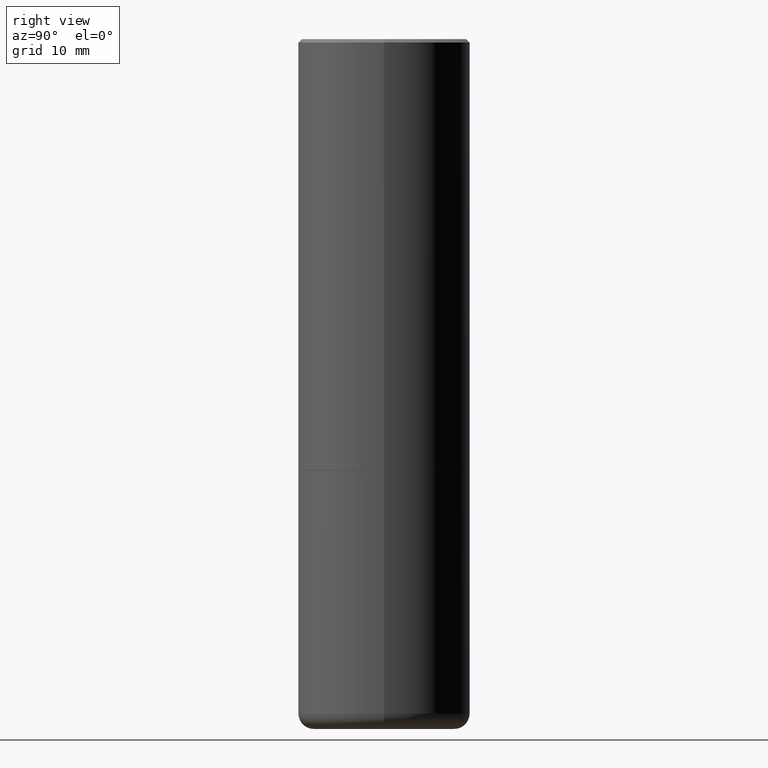
[diagram: clean part render]
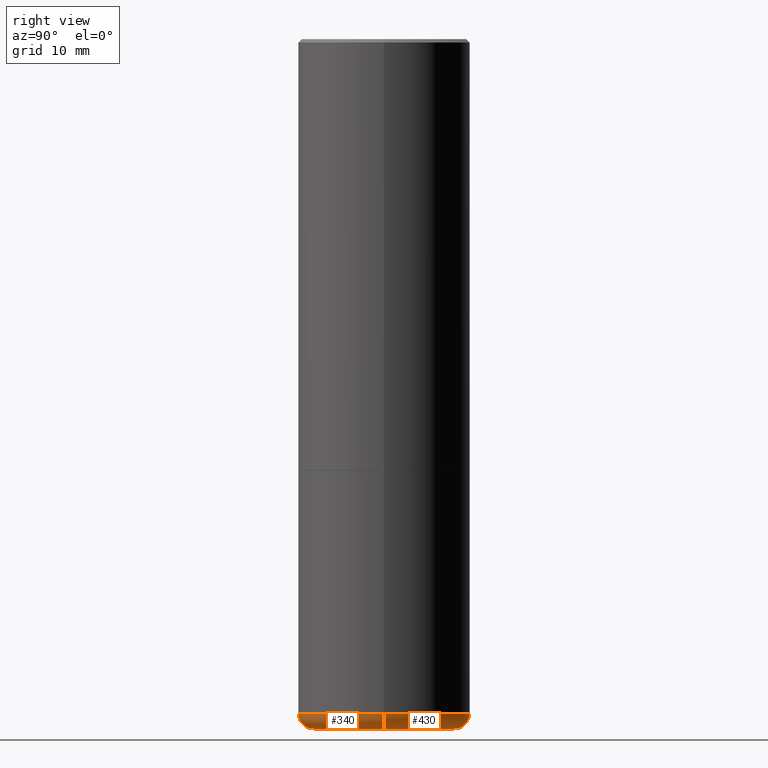
[diagram: same view with one multi-face feature highlighted, each face labeled with its STEP entity id]
A machine part, right view. The highlighted faces form ONE feature: a constant-radius fillet chain: 2 tangent blend faces with common blend radius 2.286 mm. The faces share edges in the B-rep.
Their STEP definitions:
[1] entity #430 (Torus):
#2 = EDGE_LOOP ( 'NONE', ( #293, #30, #399, #130 ) ) ;
#18 = CIRCLE ( 'NONE', #258, 0.08999999999999999667 ) ;
#30 = ORIENTED_EDGE ( 'NONE', *, *, #120, .T. ) ;
#34 = CIRCLE ( 'NONE', #294, 0.4052897639381357053 ) ;
#53 = CARTESIAN_POINT ( 'NONE',  ( 0.4099999999999999756, -1.651513737857276136E-14, -3.910123341872087988 ) ) ;
#85 = DIRECTION ( 'NONE',  ( 1.000000000000000000, -6.982962677686269077E-15, 0.000000000000000000 ) ) ;
#86 = VERTEX_POINT ( 'NONE', #246 ) ;
#96 = VERTEX_POINT ( 'NONE', #178 ) ;
#108 = DIRECTION ( 'NONE',  ( 1.000000000000000000, -6.982962677686266711E-15, 0.000000000000000000 ) ) ;
#120 = EDGE_CURVE ( 'NONE', #387, #416, #18, .T. ) ;
#124 = EDGE_CURVE ( 'NONE', #96, #86, #330, .T. ) ;
#130 = ORIENTED_EDGE ( 'NONE', *, *, #124, .F. ) ;
#137 = FACE_OUTER_BOUND ( 'NONE', #2, .T. ) ;
#150 = DIRECTION ( 'NONE',  ( 1.000000000000000000, -6.982962677686269077E-15, 0.000000000000000000 ) ) ;
#178 = CARTESIAN_POINT ( 'NONE',  ( 0.4052897639381357053, -1.679604865060086105E-14, -3.999999999999999556 ) ) ;
#179 = CARTESIAN_POINT ( 'NONE',  ( 9.781875224740545266E-29, -1.396592535537258075E-14, -3.999999999999999556 ) ) ;
#189 = DIRECTION ( 'NONE',  ( -6.982962677686266711E-15, -1.000000000000000000, 3.491481338843145583E-15 ) ) ;
#199 = EDGE_CURVE ( 'NONE', #96, #387, #34, .T. ) ;
#207 = AXIS2_PLACEMENT_3D ( 'NONE', #407, #216, #220 ) ;
#215 = CARTESIAN_POINT ( 'NONE',  ( -0.4099999999999999756, -1.073889746410498118E-14, -3.910123341872087988 ) ) ;
#216 = DIRECTION ( 'NONE',  ( -2.445468806185136597E-29, 3.491481338843145583E-15, 1.000000000000000000 ) ) ;
#219 = DIRECTION ( 'NONE',  ( 7.105427357601001859E-15, 1.000000000000000000, -3.491481338843145583E-15 ) ) ;
#220 = DIRECTION ( 'NONE',  ( 1.000000000000000000, -6.982962677686266711E-15, 4.883557194083113462E-29 ) ) ;
#246 = CARTESIAN_POINT ( 'NONE',  ( 0.5000000000000000000, -1.714360401956452473E-14, -3.910123341872087988 ) ) ;
#256 = DIRECTION ( 'NONE',  ( -1.000000000000000000, 7.105427357600990815E-15, 0.000000000000000000 ) ) ;
#258 = AXIS2_PLACEMENT_3D ( 'NONE', #215, #219, #256 ) ;
#293 = ORIENTED_EDGE ( 'NONE', *, *, #199, .T. ) ;
#294 = AXIS2_PLACEMENT_3D ( 'NONE', #179, #418, #85 ) ;
#295 = CARTESIAN_POINT ( 'NONE',  ( -0.4052897639381357053, -1.059278869042589352E-14, -3.999999999999999556 ) ) ;
#318 = AXIS2_PLACEMENT_3D ( 'NONE', #53, #189, #150 ) ;
#330 = CIRCLE ( 'NONE', #318, 0.08999999999999999667 ) ;
#347 = DIRECTION ( 'NONE',  ( -2.445468806185136597E-29, 3.491481338843145583E-15, 1.000000000000000000 ) ) ;
#350 = CARTESIAN_POINT ( 'NONE',  ( -0.5000000000000000000, -7.637699335114127230E-15, -3.910123341872087988 ) ) ;
#362 = AXIS2_PLACEMENT_3D ( 'NONE', #371, #347, #108 ) ;
#371 = CARTESIAN_POINT ( 'NONE',  ( 9.562084660884571289E-29, -1.365212268072139138E-14, -3.910123341872087988 ) ) ;
#386 = TOROIDAL_SURFACE ( 'NONE', #207, 0.4099999999999999756, 0.08999999999999998279 ) ;
#387 = VERTEX_POINT ( 'NONE', #295 ) ;
#399 = ORIENTED_EDGE ( 'NONE', *, *, #402, .F. ) ;
#402 = EDGE_CURVE ( 'NONE', #86, #416, #442, .T. ) ;
#407 = CARTESIAN_POINT ( 'NONE',  ( 9.562084660884571289E-29, -1.365212268072139138E-14, -3.910123341872087988 ) ) ;
#416 = VERTEX_POINT ( 'NONE', #350 ) ;
#418 = DIRECTION ( 'NONE',  ( -2.445468806185136597E-29, 3.491481338843145583E-15, 1.000000000000000000 ) ) ;
#430 = ADVANCED_FACE ( 'NONE', ( #137 ), #386, .T. ) ;
#442 = CIRCLE ( 'NONE', #362, 0.5000000000000000000 ) ;
[2] entity #340 (Torus):
#7 = DIRECTION ( 'NONE',  ( -2.445468806185136597E-29, 3.491481338843145583E-15, 1.000000000000000000 ) ) ;
#18 = CIRCLE ( 'NONE', #258, 0.08999999999999999667 ) ;
#22 = ORIENTED_EDGE ( 'NONE', *, *, #120, .F. ) ;
#53 = CARTESIAN_POINT ( 'NONE',  ( 0.4099999999999999756, -1.651513737857276136E-14, -3.910123341872087988 ) ) ;
#73 = ORIENTED_EDGE ( 'NONE', *, *, #124, .T. ) ;
#86 = VERTEX_POINT ( 'NONE', #246 ) ;
#96 = VERTEX_POINT ( 'NONE', #178 ) ;
#101 = EDGE_CURVE ( 'NONE', #387, #96, #105, .T. ) ;
#105 = CIRCLE ( 'NONE', #237, 0.4052897639381357053 ) ;
#120 = EDGE_CURVE ( 'NONE', #387, #416, #18, .T. ) ;
#124 = EDGE_CURVE ( 'NONE', #96, #86, #330, .T. ) ;
#150 = DIRECTION ( 'NONE',  ( 1.000000000000000000, -6.982962677686269077E-15, 0.000000000000000000 ) ) ;
#151 = DIRECTION ( 'NONE',  ( 1.000000000000000000, -6.982962677686269077E-15, 0.000000000000000000 ) ) ;
#178 = CARTESIAN_POINT ( 'NONE',  ( 0.4052897639381357053, -1.679604865060086105E-14, -3.999999999999999556 ) ) ;
#189 = DIRECTION ( 'NONE',  ( -6.982962677686266711E-15, -1.000000000000000000, 3.491481338843145583E-15 ) ) ;
#200 = TOROIDAL_SURFACE ( 'NONE', #353, 0.4099999999999999756, 0.08999999999999998279 ) ;
#206 = CARTESIAN_POINT ( 'NONE',  ( 9.562084660884571289E-29, -1.365212268072139138E-14, -3.910123341872087988 ) ) ;
#213 = CARTESIAN_POINT ( 'NONE',  ( 9.781875224740545266E-29, -1.396592535537258075E-14, -3.999999999999999556 ) ) ;
#215 = CARTESIAN_POINT ( 'NONE',  ( -0.4099999999999999756, -1.073889746410498118E-14, -3.910123341872087988 ) ) ;
#219 = DIRECTION ( 'NONE',  ( 7.105427357601001859E-15, 1.000000000000000000, -3.491481338843145583E-15 ) ) ;
#237 = AXIS2_PLACEMENT_3D ( 'NONE', #213, #7, #151 ) ;
#242 = DIRECTION ( 'NONE',  ( 1.000000000000000000, -6.982962677686266711E-15, 4.883557194083113462E-29 ) ) ;
#246 = CARTESIAN_POINT ( 'NONE',  ( 0.5000000000000000000, -1.714360401956452473E-14, -3.910123341872087988 ) ) ;
#249 = DIRECTION ( 'NONE',  ( 1.000000000000000000, -6.982962677686266711E-15, 0.000000000000000000 ) ) ;
#256 = DIRECTION ( 'NONE',  ( -1.000000000000000000, 7.105427357600990815E-15, 0.000000000000000000 ) ) ;
#258 = AXIS2_PLACEMENT_3D ( 'NONE', #215, #219, #256 ) ;
#275 = CARTESIAN_POINT ( 'NONE',  ( 9.562084660884571289E-29, -1.365212268072139138E-14, -3.910123341872087988 ) ) ;
#295 = CARTESIAN_POINT ( 'NONE',  ( -0.4052897639381357053, -1.059278869042589352E-14, -3.999999999999999556 ) ) ;
#305 = CIRCLE ( 'NONE', #401, 0.5000000000000000000 ) ;
#312 = DIRECTION ( 'NONE',  ( -2.445468806185136597E-29, 3.491481338843145583E-15, 1.000000000000000000 ) ) ;
#318 = AXIS2_PLACEMENT_3D ( 'NONE', #53, #189, #150 ) ;
#330 = CIRCLE ( 'NONE', #318, 0.08999999999999999667 ) ;
#340 = ADVANCED_FACE ( 'NONE', ( #365 ), #200, .T. ) ;
#350 = CARTESIAN_POINT ( 'NONE',  ( -0.5000000000000000000, -7.637699335114127230E-15, -3.910123341872087988 ) ) ;
#353 = AXIS2_PLACEMENT_3D ( 'NONE', #206, #312, #242 ) ;
#356 = ORIENTED_EDGE ( 'NONE', *, *, #101, .T. ) ;
#365 = FACE_OUTER_BOUND ( 'NONE', #424, .T. ) ;
#376 = DIRECTION ( 'NONE',  ( -2.445468806185136597E-29, 3.491481338843145583E-15, 1.000000000000000000 ) ) ;
#387 = VERTEX_POINT ( 'NONE', #295 ) ;
#401 = AXIS2_PLACEMENT_3D ( 'NONE', #275, #376, #249 ) ;
#410 = ORIENTED_EDGE ( 'NONE', *, *, #438, .F. ) ;
#416 = VERTEX_POINT ( 'NONE', #350 ) ;
#424 = EDGE_LOOP ( 'NONE', ( #22, #356, #73, #410 ) ) ;
#438 = EDGE_CURVE ( 'NONE', #416, #86, #305, .T. ) ;